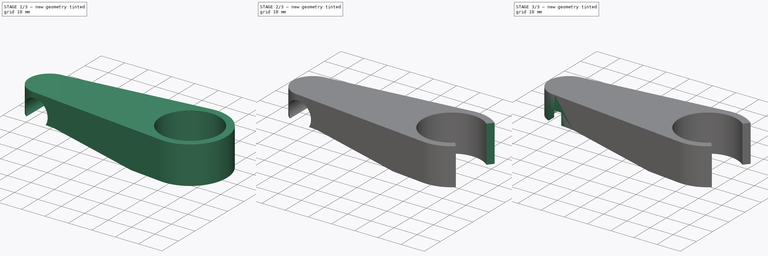
[diagram: build sequence overview — one tinted view per stage of 3, left to right]
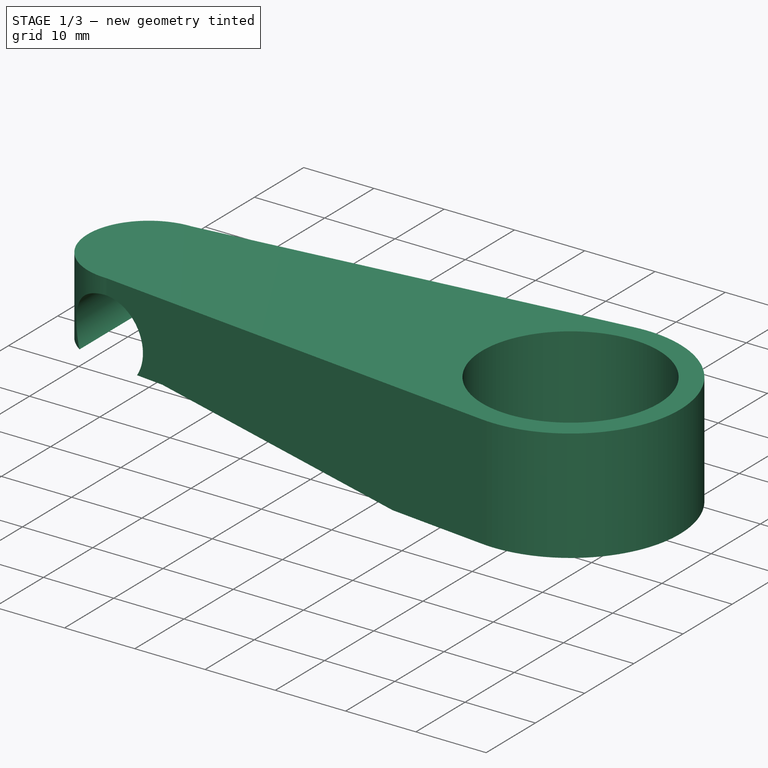
[diagram: stage 1 of 3 — iso view after this stage's code; geometry added in this stage tinted green]
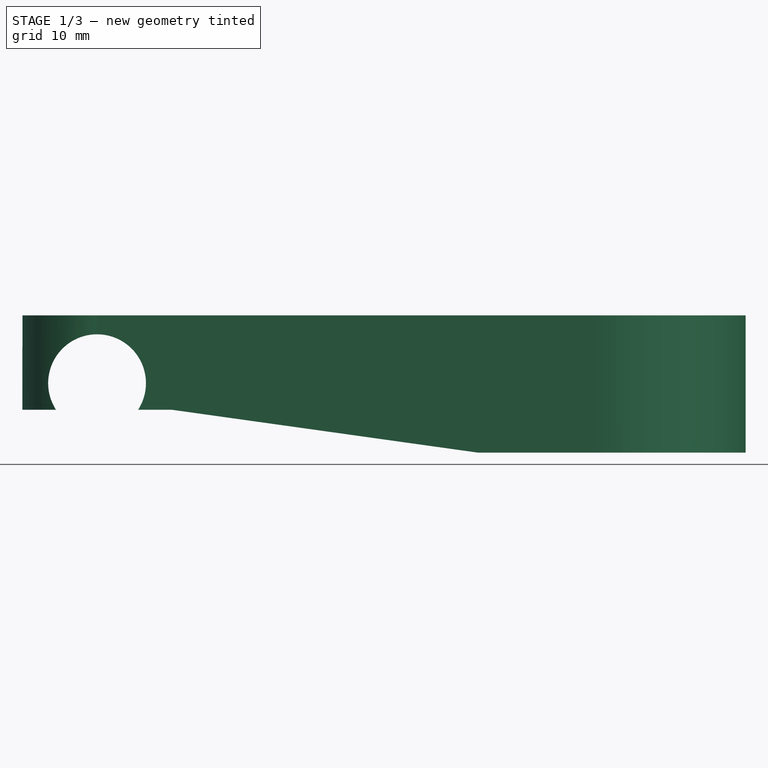
[diagram: stage 1 of 3 — front view after this stage's code; geometry added in this stage tinted green]
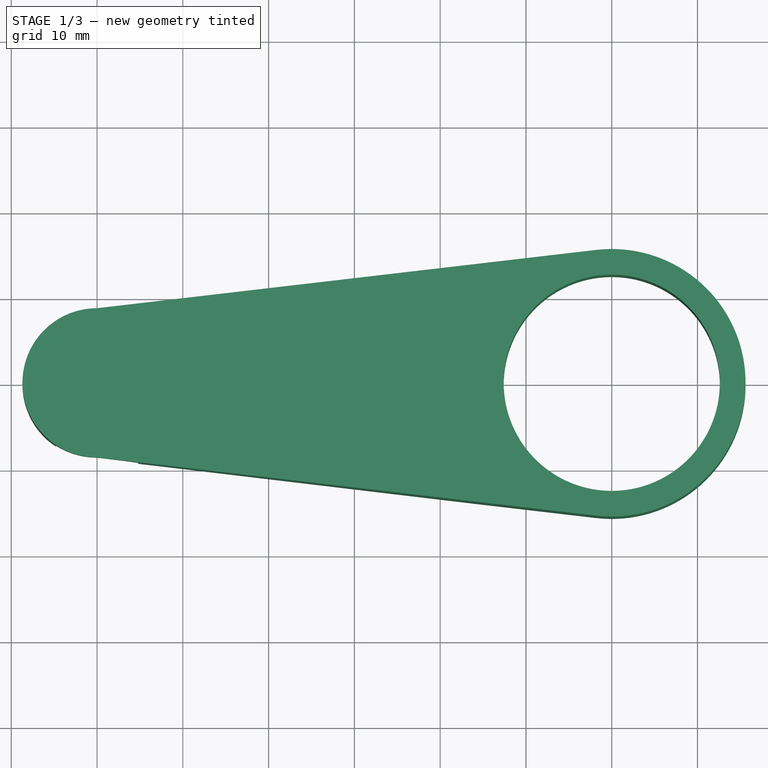
[diagram: stage 1 of 3 — top view after this stage's code; geometry added in this stage tinted green]
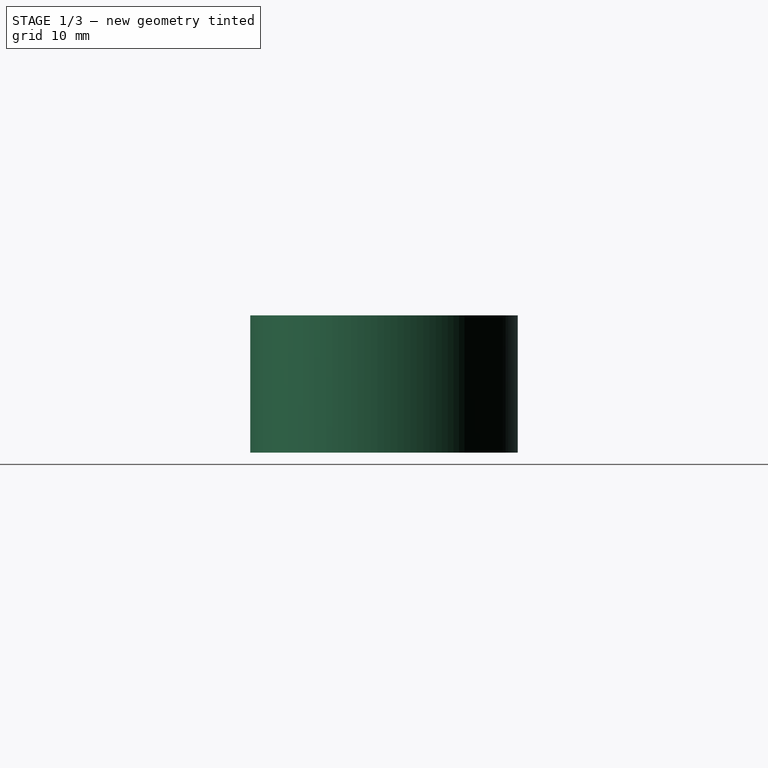
[diagram: stage 1 of 3 — right view after this stage's code; geometry added in this stage tinted green]
FCSTD DOCUMENT  (FreeCAD 0.20RUnknown)
Label: littlelf_mount
License: All rights reserved
LicenseURL: http://en.wikipedia.org/wiki/All_rights_reserved
objects: Sketcher::SketchObject×5, PartDesign::Pocket×3, PartDesign::Pad×2, Spreadsheet::Sheet×1, PartDesign::Body×1
note: 16 computed .brp shape members not serialized (recipe doc carries the construction recipe); baked Part::Feature solids carry a one-line shape summary decoded from their .brp

FEATURE [Spreadsheet::Sheet] Spreadsheet  label="$params"
  cells = A1=name; B1=value; A2=camera_joint_diam; B2(camera_joint_diam)=11.4; A3=rod_joint_diam; B3(rod_joint_diam)=25.2; A4=distance; B4(distance)=60; A5=padding; B5(padding)=3; A6=rod_joint_height; B6(rod_joint_height)=16; A7=camera_join_height; B7(camera_join_height)=11; A8=camera_join_slot; B8(camera_join_slot)=6; A9=camera_join_slot_depth; B9(camera_join_slot_depth)=5; A10=camera_join_cut_angle; B10(camera_join_cut_angle)=100
FEATURE [Sketcher::SketchObject] Sketch  label="Body Flat Sketch"
  FullyConstrained = true
  MapMode = 5
  Support = -> [XY_Plane]
  expr: Constraints[18] = <<$params>>.distance
  expr: Constraints[21] = <<$params>>.rod_joint_diam
  expr: Constraints[4] = <<$params>>.rod_joint_diam + <<$params>>.padding * 2
  expr: Constraints[5] = <<$params>>.camera_joint_diam + <<$params>>.padding * 2
  sketch-geometry (8):
    g0: ArcOfCircle CenterX=-30 CenterY=0 CenterZ=0 NormalX=0 NormalY=0 NormalZ=1 AngleXU=0 Radius=8.7 StartAngle=1.5708 EndAngle=4.71239
    g1: LineSegment StartX=-30 StartY=-8.7 StartZ=0 EndX=-30 EndY=8.7 EndZ=0
    g2: LineSegment StartX=30 StartY=15.6 StartZ=0 EndX=30 EndY=-15.6 EndZ=0
    g3: ArcOfCircle CenterX=30 CenterY=0 CenterZ=0 NormalX=0 NormalY=0 NormalZ=1 AngleXU=0 Radius=15.6 StartAngle=4.59615 EndAngle=7.97022
    g4: LineSegment StartX=-30 StartY=8.7 StartZ=0 EndX=28.1907 EndY=15.4947 EndZ=0
    g5: LineSegment StartX=-30 StartY=-8.7 StartZ=0 EndX=28.1907 EndY=-15.4947 EndZ=0
    g6: LineSegment StartX=28.1907 StartY=15.4947 StartZ=0 EndX=28.1907 EndY=-15.4947 EndZ=0
    g7: Circle CenterX=30 CenterY=0 CenterZ=0 NormalX=0 NormalY=0 NormalZ=1 AngleXU=0 Radius=12.6
  constraints (22):
    c: PointOnObject(g0,g-1)
    c: PointOnObject(g0,g1)
    c: Vertical(g1)
    c: Vertical(g2)
    c: DistanceY(g2,g2) = 31.2
    c: DistanceY(g1,g1) = 17.4
    c: Coincident(g0,g1)
    c: Coincident(g0,g1)
    c: PointOnObject(g2,g3)
    c: PointOnObject(g3,g2)
    c: Coincident(g4,g0)
    c: PointOnObject(g2,g3)
    c: Coincident(g5,g0)
    c: Coincident(g4,g3)
    c: Tangent(g5,g3) = -1.5708
    c: Coincident(g6,g3)
    c: Coincident(g6,g3)
    c: Vertical(g6)
    c: DistanceX(g0,g3) = 60
    c: Symmetric(g0,g3,g-2)
    c: Coincident(g7,g3)
    c: Diameter(g7) = 25.2
FEATURE [PartDesign::Pad] Pad  label="Body Flat Pad"
  Direction = (0,0,1)
  Length = 16
  Length2 = 10
  Profile = -> Sketch
  ReferenceAxis = -> Sketch [N_Axis]
  Type = 0
  expr: Length = <<$params>>.rod_joint_height
FEATURE [Sketcher::SketchObject] Sketch001  label="Body Flat Cut Sketch"
  ExternalGeometry = -> [Pad]
  FullyConstrained = true
  MapMode = 5
  Placement = pos=(0,0,0) rot=(1,0,0;1.5708rad)
  Support = -> [XZ_Plane]
  expr: Constraints[11] = <<$params>>.padding
  expr: Constraints[12] = <<$params>>.camera_join_height
  expr: Constraints[19] = <<$params>>.padding
  expr: Constraints[20] = <<$params>>.camera_joint_diam * 0.84
  expr: Constraints[25] = <<$params>>.padding
  expr: Constraints[6] = <<$params>>.camera_joint_diam
  sketch-geometry (9):
    g0: LineSegment StartX=14.4 StartY=0 StartZ=0 EndX=-21.3 EndY=5 EndZ=0
    g1: LineSegment StartX=-21.3 StartY=5 StartZ=0 EndX=-25.212 EndY=5 EndZ=0
    g2: LineSegment StartX=-38.7 StartY=5 StartZ=0 EndX=-38.7 EndY=0 EndZ=0
    g3: LineSegment StartX=-38.7 StartY=0 StartZ=0 EndX=14.4 EndY=0 EndZ=0
    g4: ArcOfCircle CenterX=-30 CenterY=8.09274 CenterZ=0 NormalX=0 NormalY=0 NormalZ=1 AngleXU=0 Radius=5.7 StartAngle=5.70967 EndAngle=9.99829
    g5: LineSegment StartX=-24.3 StartY=8.09274 StartZ=0 EndX=-35.7 EndY=8.09274 EndZ=0
    g6: LineSegment StartX=-34.788 StartY=5 StartZ=0 EndX=-38.7 EndY=5 EndZ=0
    g7: LineSegment StartX=-34.788 StartY=5 StartZ=0 EndX=-25.212 EndY=5 EndZ=0
    g8: LineSegment StartX=17.4 StartY=0 StartZ=0 EndX=14.4 EndY=0 EndZ=0
  constraints (26):
    c: Coincident(g1,g0)
    c: Horizontal(g1)
    c: Coincident(g2,g6)
    c: Coincident(g2,g-5)
    c: Vertical(g2)
    c: Coincident(g3,g2)
    c: Diameter(g4) = 11.4
    c: PointOnObject(g5,g4)
    c: PointOnObject(g5,g4)
    c: Horizontal(g5)
    c: PointOnObject(g4,g5)
    c: DistanceX(g2,g5) = 3
    c: DistanceY(g6,g-4) = 11
    c: Coincident(g1,g4)
    c: Coincident(g6,g4)
    c: Coincident(g7,g4)
    c: Coincident(g7,g1)
    c: Horizontal(g7)
    c: Horizontal(g6)
    c: DistanceX(g5,g0) = 3
    c: DistanceX(g7,g7) = 9.576
    c: Coincident(g0,g3)
    c: Coincident(g8,g-3)
    c: Coincident(g8,g0)
    c: Horizontal(g8)
    c: DistanceX(g8,g8) = 3
FEATURE [PartDesign::Pocket] Pocket  label="Body Flat Cut"
  BaseFeature = -> Pad
  Direction = (0,1,2e-16)
  Length = 20
  Length2 = 20
  Profile = -> Sketch001
  ReferenceAxis = -> Sketch001 [N_Axis]
  Type = 4
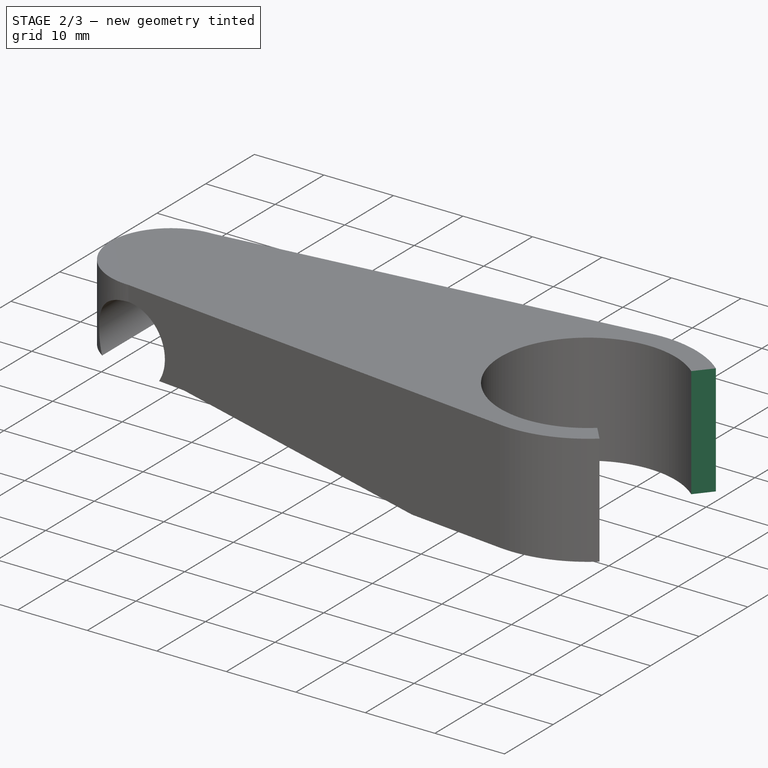
[diagram: stage 2 of 3 — iso view after this stage's code; geometry added in this stage tinted green]
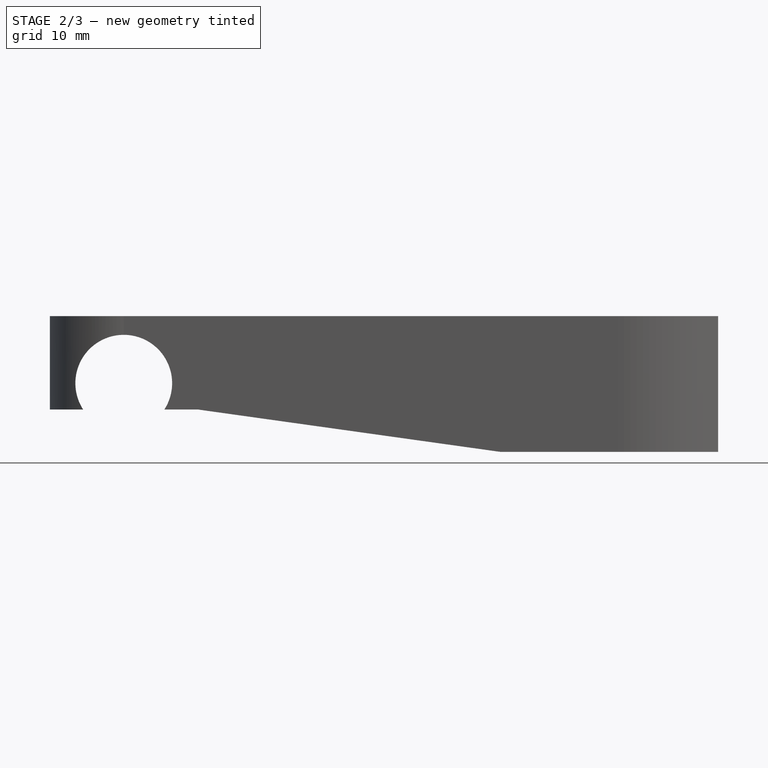
[diagram: stage 2 of 3 — front view after this stage's code; geometry added in this stage tinted green]
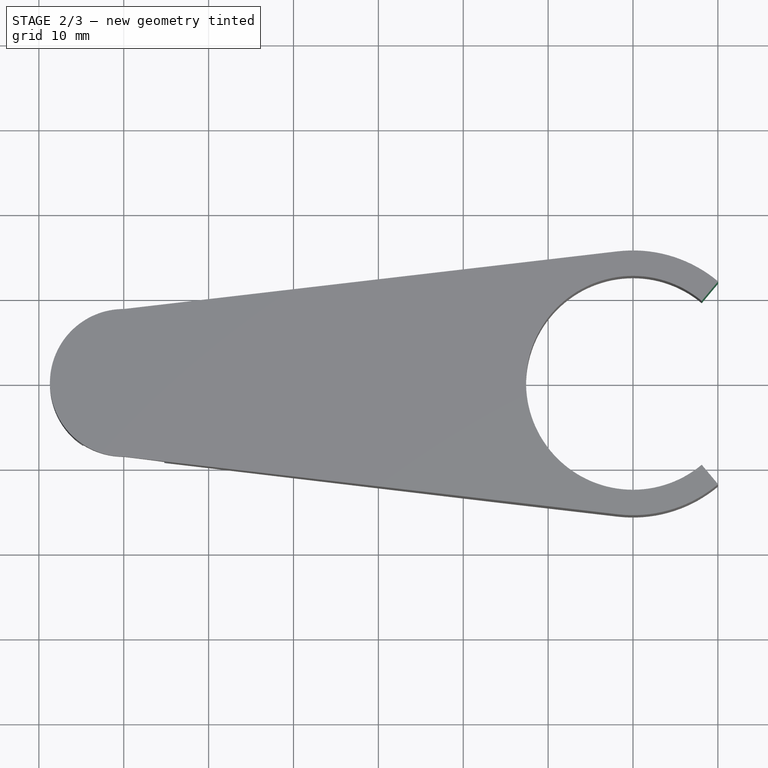
[diagram: stage 2 of 3 — top view after this stage's code; geometry added in this stage tinted green]
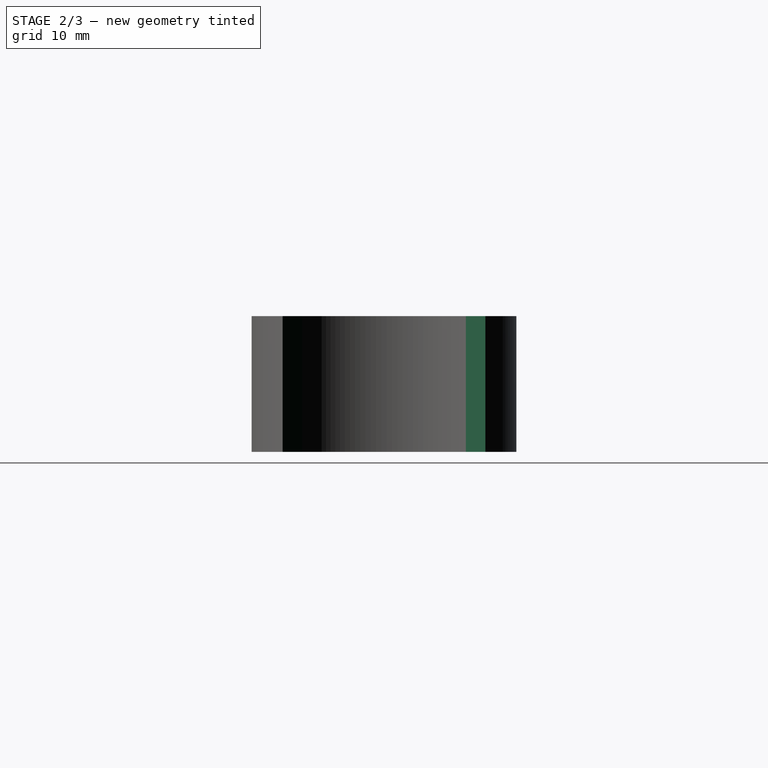
[diagram: stage 2 of 3 — right view after this stage's code; geometry added in this stage tinted green]
FEATURE [Sketcher::SketchObject] Sketch002  label="Body Flat Rod Connect Cut Sketch"
  ExternalGeometry = -> [Pocket]
  FullyConstrained = true
  MapMode = 5
  Placement = pos=(0,0,0) rot=(1,0,0;3.14159rad)
  Support = -> [Pocket]
  expr: Constraints[6] = <<$params>>.camera_join_cut_angle
  expr: Constraints[9] = <<$params>>.rod_joint_diam * 1.3
  sketch-geometry (4):
    g0: LineSegment StartX=30 StartY=0 StartZ=0 EndX=62.76 EndY=39.0418 EndZ=0
    g1: LineSegment StartX=30 StartY=0 StartZ=0 EndX=62.76 EndY=-39.0418 EndZ=0
    g2: LineSegment StartX=62.76 StartY=39.0418 StartZ=0 EndX=62.76 EndY=-39.0418 EndZ=0
    g3: GeomPoint X=62.76 Y=0 Z=0
  constraints (10):
    c: Coincident(g0,g-3)
    c: Coincident(g1,g0)
    c: Coincident(g2,g0)
    c: Coincident(g2,g1)
    c: Vertical(g2)
    c: Equal(g0,g1)
    c: Angle(g1,g0) = 1.74533
    c: PointOnObject(g3,g-1)
    c: PointOnObject(g3,g2)
    c: DistanceX(g0,g3) = 32.76
FEATURE [PartDesign::Pocket] Pocket001  label="Body Flat Rod Connect Cut"
  BaseFeature = -> Pocket
  Direction = (0,0,1)
  Length = 5
  Length2 = 5
  Profile = -> Sketch002
  ReferenceAxis = -> Sketch002 [N_Axis]
  Type = 1
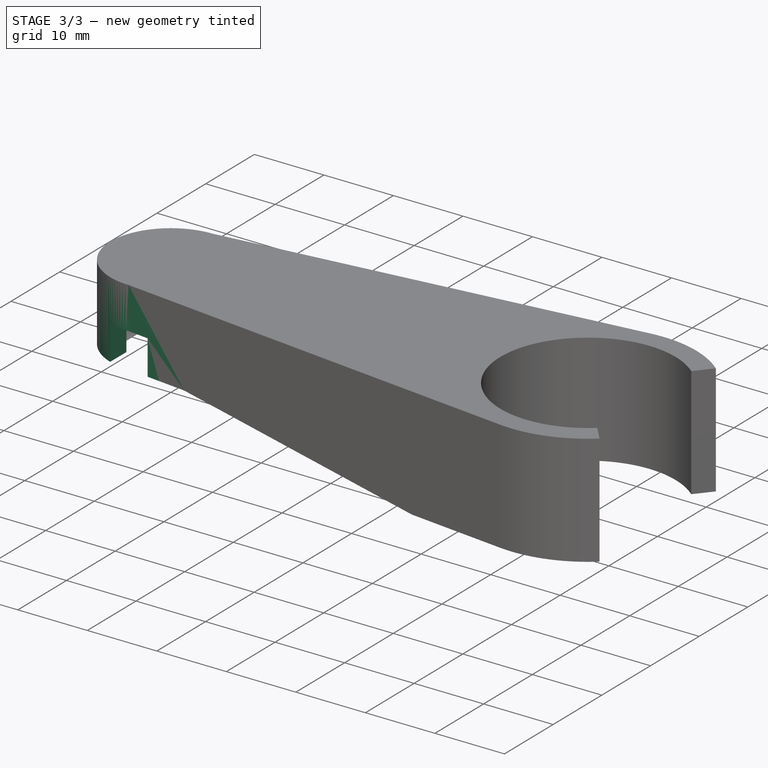
[diagram: stage 3 of 3 — iso view after this stage's code; geometry added in this stage tinted green]
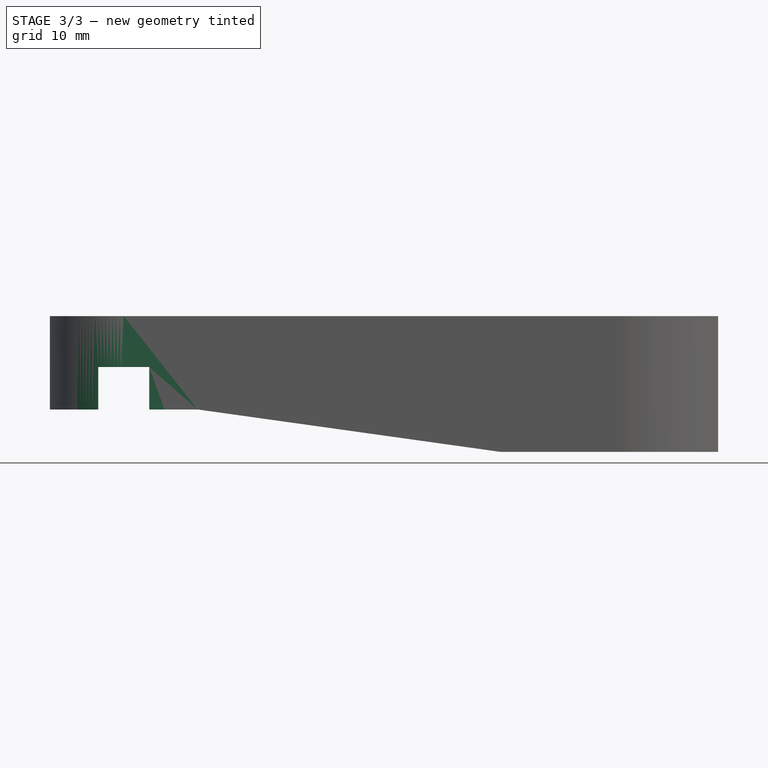
[diagram: stage 3 of 3 — front view after this stage's code; geometry added in this stage tinted green]
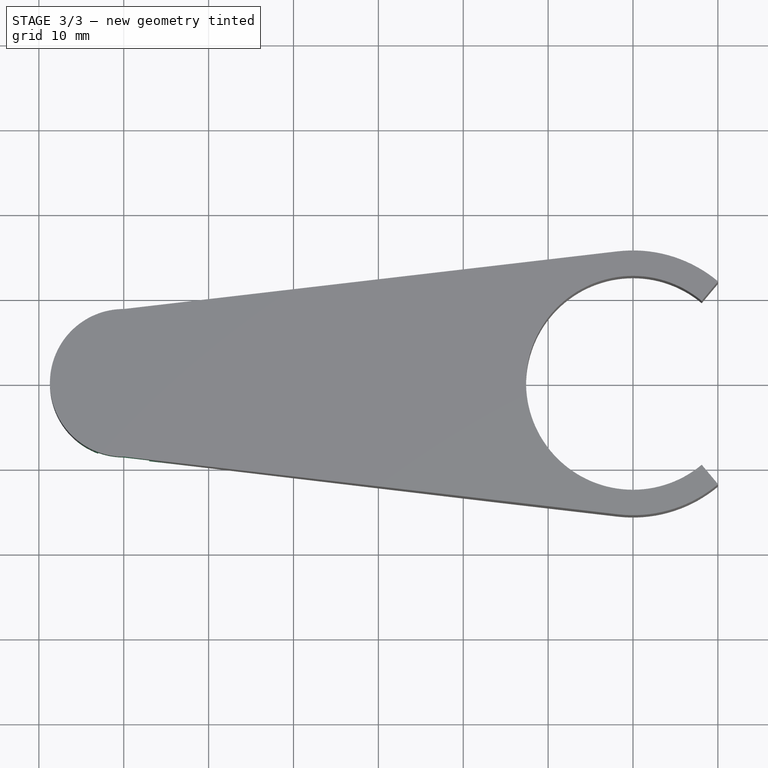
[diagram: stage 3 of 3 — top view after this stage's code; geometry added in this stage tinted green]
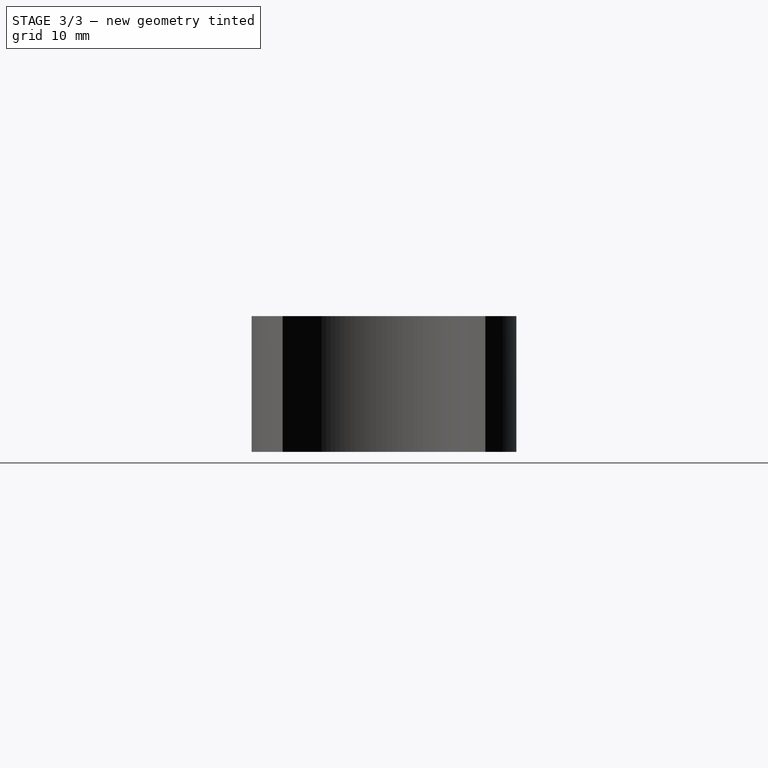
[diagram: stage 3 of 3 — right view after this stage's code; geometry added in this stage tinted green]
FEATURE [Sketcher::SketchObject] Sketch003  label="Body Flat Camera Pad Sketch"
  ExternalGeometry = -> [Pocket,Sketch]
  FullyConstrained = true
  MapMode = 5
  Placement = pos=(0,-1.1e-15,5) rot=(1,0,0;3.14159rad)
  Support = -> [Pocket]
  expr: Constraints[1] = <<$params>>.camera_joint_diam
  sketch-geometry (5):
    g0: Circle CenterX=-30 CenterY=0 CenterZ=0 NormalX=0 NormalY=0 NormalZ=1 AngleXU=0 Radius=5.7
    g1: ArcOfCircle CenterX=-30 CenterY=0 CenterZ=0 NormalX=0 NormalY=0 NormalZ=1 AngleXU=0 Radius=8.7 StartAngle=1.5708 EndAngle=4.71239
    g2: LineSegment StartX=-30 StartY=8.7 StartZ=0 EndX=-21.3 EndY=9.71587 EndZ=0
    g3: LineSegment StartX=-21.3 StartY=-9.71587 StartZ=0 EndX=-30 EndY=-8.7 EndZ=0
    g4: LineSegment StartX=-21.3 StartY=9.71587 StartZ=0 EndX=-21.3 EndY=-9.71587 EndZ=0
  constraints (12):
    c: PointOnObject(g0,g-1)
    c: Diameter(g0) = 11.4
    c: Coincident(g1,g0)
    c: PointOnObject(g-3,g1)
    c: Coincident(g2,g-5)
    c: Coincident(g2,g-4)
    c: Coincident(g3,g-4)
    c: Coincident(g3,g-6)
    c: Coincident(g4,g2)
    c: Coincident(g4,g3)
    c: Coincident(g1,g3)
    c: PointOnObject(g1,g2)
FEATURE [PartDesign::Pad] Pad001  label="Body Flat Camera Pad"
  BaseFeature = -> Pocket001
  Direction = (0,2e-16,-1)
  Length = 10
  Length2 = 10
  Profile = -> Sketch003
  ReferenceAxis = -> Sketch003 [N_Axis]
  Refine = true
  Reversed = true
  Type = 1
FEATURE [Sketcher::SketchObject] Sketch004  label="Body Flat Camera Slot Cut Sketch"
  ExternalGeometry = -> [Sketch003]
  FullyConstrained = true
  MapMode = 5
  Placement = pos=(0,-9e-16,5) rot=(1,0,0;3.14159rad)
  Support = -> [Pad001]
  expr: Constraints[10] = <<$params>>.camera_join_slot
  expr: Constraints[9] = <<$params>>.camera_joint_diam * 2
  sketch-geometry (4):
    g0: LineSegment StartX=-33 StartY=11.4 StartZ=0 EndX=-27 EndY=11.4 EndZ=0
    g1: LineSegment StartX=-27 StartY=11.4 StartZ=0 EndX=-27 EndY=-11.4 EndZ=0
    g2: LineSegment StartX=-27 StartY=-11.4 StartZ=0 EndX=-33 EndY=-11.4 EndZ=0
    g3: LineSegment StartX=-33 StartY=-11.4 StartZ=0 EndX=-33 EndY=11.4 EndZ=0
  constraints (11):
    c: Coincident(g0,g1)
    c: Coincident(g1,g2)
    c: Coincident(g2,g3)
    c: Coincident(g3,g0)
    c: Horizontal(g0)
    c: Horizontal(g2)
    c: Vertical(g1)
    c: Vertical(g3)
    c: Symmetric(g0,g1,g-3)
    c: DistanceY(g1,g1) = 22.8
    c: DistanceX(g0,g0) = 6
FEATURE [PartDesign::Pocket] Pocket002  label="Body Flat Camera Slot Cut"
  BaseFeature = -> Pad001
  Direction = (0,-2e-16,1)
  Length = 5
  Length2 = 5
  Profile = -> Sketch004
  ReferenceAxis = -> Sketch004 [N_Axis]
  Type = 0
  expr: Length = <<$params>>.camera_join_slot_depth
FEATURE [PartDesign::Body] Body  label="Mount Body"
  Group = -> [Sketch,Pad,Sketch001,Pocket,Sketch002,Pocket001,Sketch003,Pad001,Sketch004,Pocket002]
  Origin = -> Origin
  Tip = -> Pocket002
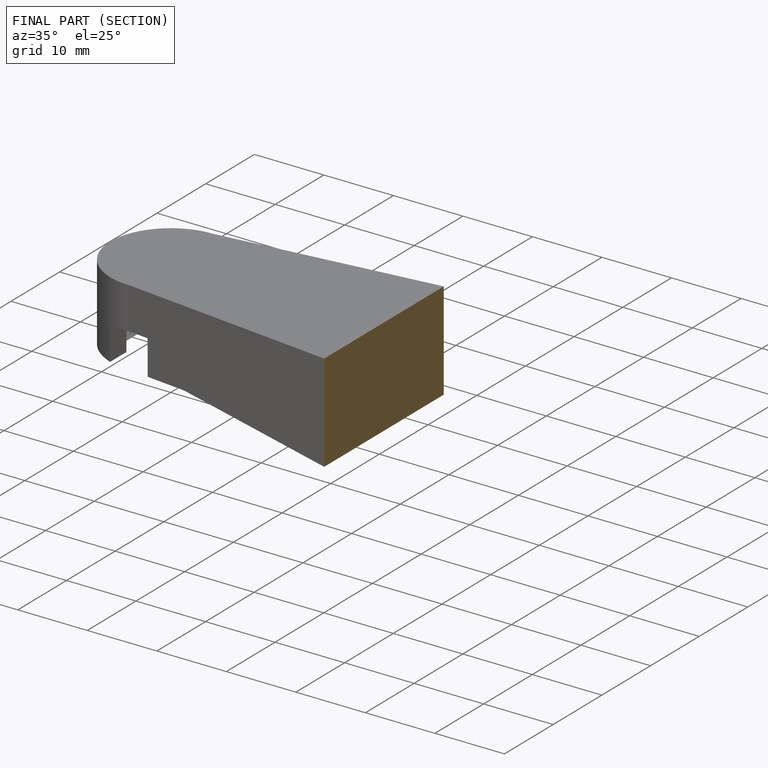
[diagram: finished part — half-section view (interior)]
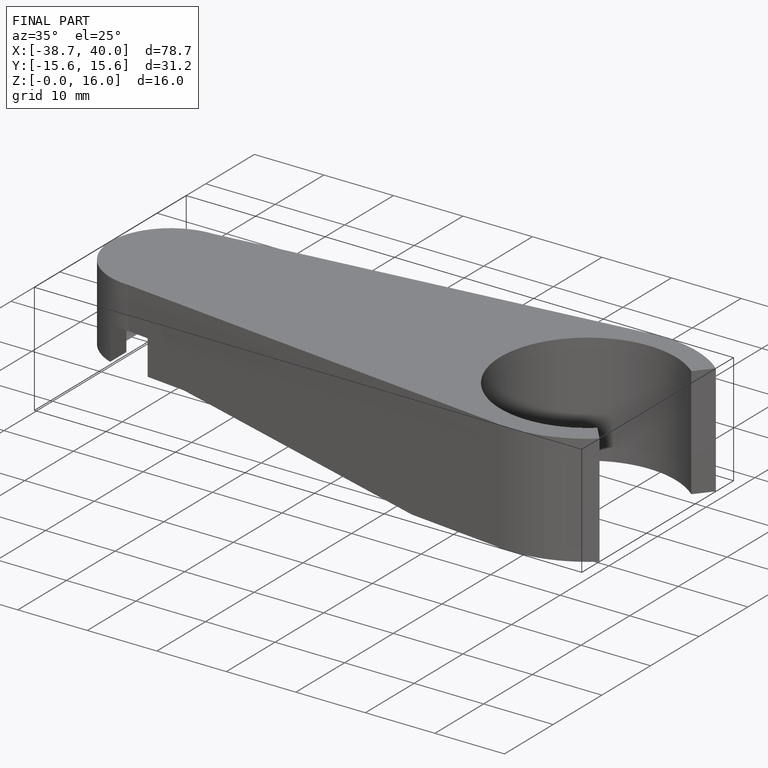
[diagram: finished part — iso view with bounding-box wireframe]
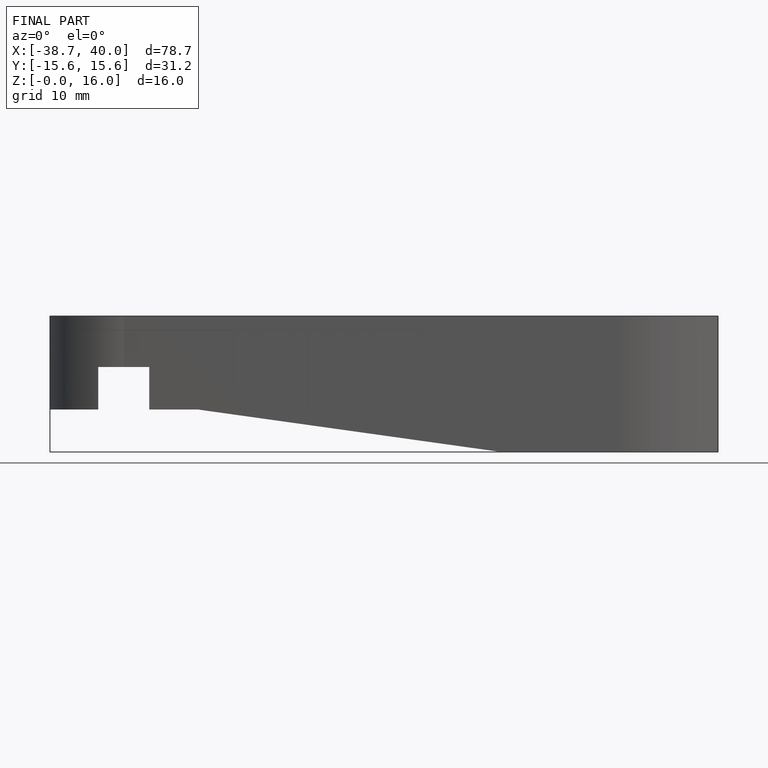
[diagram: finished part — front view with bounding-box wireframe]
